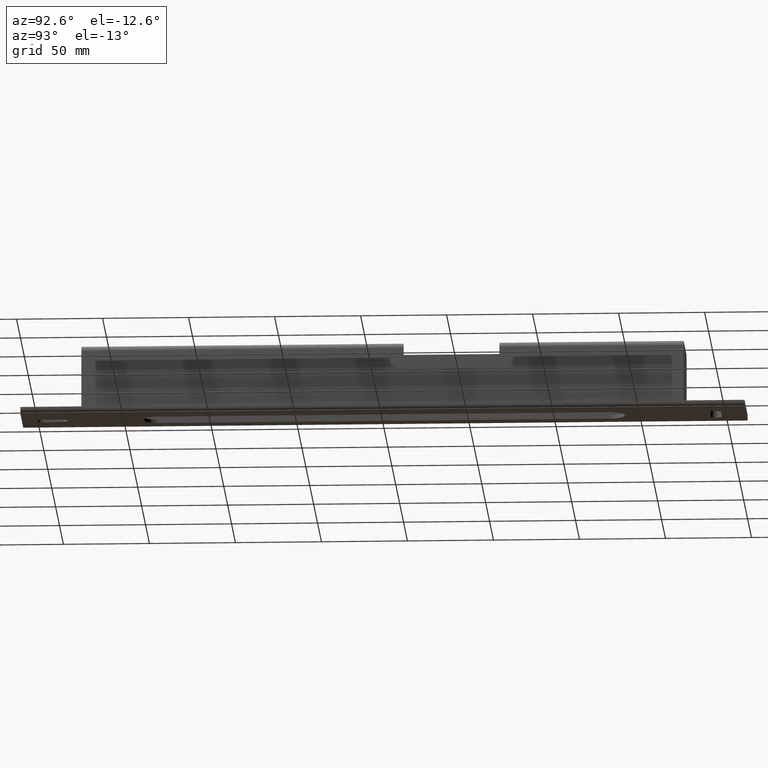
[diagram: clean part render]
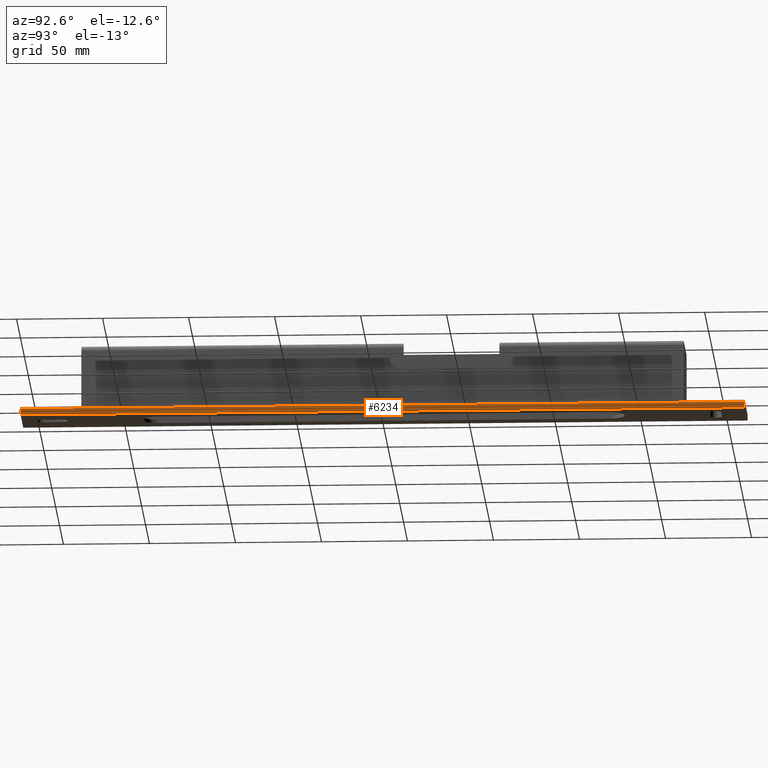
[diagram: same view with one face highlighted and labeled with its STEP entity id]
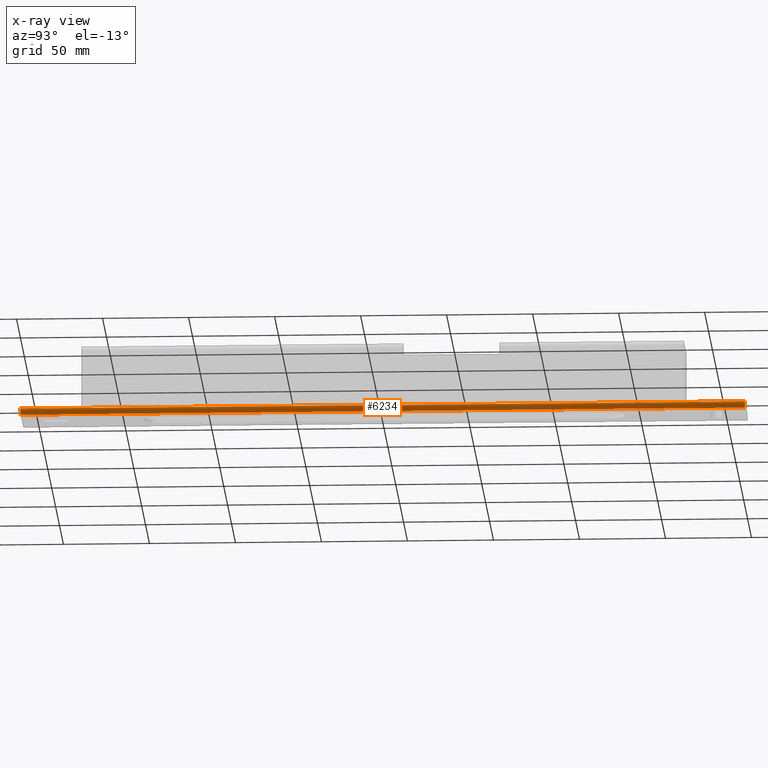
[diagram: x-ray of the same camera — body ghosted, the highlighted face saturated]
A machine part, auxiliary view. The second image highlights one B-rep face of the part: STEP entity #6234.
The next image is the same camera in x-ray: the body ghosted, the highlighted face saturated — about 0% of this face is hidden behind the body in this view.
In plain terms, the highlighted cylindrical surface (edge-blend (fillet) strip) has radius 3 mm, axis along (0, -1, 0).
Its self-contained STEP definition (entity closure, byte-faithful):
#282 = VERTEX_POINT ( 'NONE', #1224 ) ;
#1224 = CARTESIAN_POINT ( 'NONE',  ( 19.99999999999999645, 210.5000000000000000, -16.99999999999999289 ) ) ;
#1819 = DIRECTION ( 'NONE',  ( 0.000000000000000000, 0.000000000000000000, 1.000000000000000000 ) ) ;
#1859 = DIRECTION ( 'NONE',  ( 0.000000000000000000, 1.000000000000000000, 0.000000000000000000 ) ) ;
#1876 = AXIS2_PLACEMENT_3D ( 'NONE', #6945, #7053, #8160 ) ;
#2022 = VECTOR ( 'NONE', #13501, 1000.000000000000000 ) ;
#2537 = LINE ( 'NONE', #12326, #2022 ) ;
#3083 = ORIENTED_EDGE ( 'NONE', *, *, #13759, .T. ) ;
#3515 = CARTESIAN_POINT ( 'NONE',  ( 17.00000000000000000, -210.5000000000000000, -19.99999999999998934 ) ) ;
#3944 = AXIS2_PLACEMENT_3D ( 'NONE', #10745, #1859, #1819 ) ;
#4124 = DIRECTION ( 'NONE',  ( 0.000000000000000000, -1.000000000000000000, 0.000000000000000000 ) ) ;
#4141 = CARTESIAN_POINT ( 'NONE',  ( 17.00000000000000000, 210.5000000000000000, -19.99999999999998934 ) ) ;
#4216 = ORIENTED_EDGE ( 'NONE', *, *, #13552, .F. ) ;
#4913 = CIRCLE ( 'NONE', #3944, 2.999999999999997335 ) ;
#5029 = FACE_OUTER_BOUND ( 'NONE', #10085, .T. ) ;
#5112 = CARTESIAN_POINT ( 'NONE',  ( 17.00000000000000000, 175.0000000000000000, -19.99999999999999289 ) ) ;
#5903 = VERTEX_POINT ( 'NONE', #11521 ) ;
#6234 = ADVANCED_FACE ( 'NONE', ( #5029 ), #8168, .T. ) ;
#6325 = DIRECTION ( 'NONE',  ( 0.000000000000000000, 0.000000000000000000, -1.000000000000000000 ) ) ;
#6945 = CARTESIAN_POINT ( 'NONE',  ( 17.00000000000000000, -210.5000000000000000, -16.99999999999999289 ) ) ;
#7053 = DIRECTION ( 'NONE',  ( -0.000000000000000000, 1.000000000000000000, -0.000000000000000000 ) ) ;
#7388 = EDGE_CURVE ( 'NONE', #5903, #282, #2537, .T. ) ;
#7714 = VERTEX_POINT ( 'NONE', #4141 ) ;
#8040 = CIRCLE ( 'NONE', #1876, 2.999999999999997335 ) ;
#8050 = ORIENTED_EDGE ( 'NONE', *, *, #7388, .F. ) ;
#8160 = DIRECTION ( 'NONE',  ( 0.000000000000000000, 0.000000000000000000, 1.000000000000000000 ) ) ;
#8168 = CYLINDRICAL_SURFACE ( 'NONE', #14245, 2.999999999999999112 ) ;
#8425 = VECTOR ( 'NONE', #4124, 1000.000000000000000 ) ;
#10085 = EDGE_LOOP ( 'NONE', ( #4216, #13792, #8050, #3083 ) ) ;
#10594 = DIRECTION ( 'NONE',  ( 0.000000000000000000, -1.000000000000000000, 0.000000000000000000 ) ) ;
#10745 = CARTESIAN_POINT ( 'NONE',  ( 17.00000000000000000, 210.5000000000000000, -16.99999999999999289 ) ) ;
#11521 = CARTESIAN_POINT ( 'NONE',  ( 19.99999999999999645, -210.5000000000000000, -16.99999999999999289 ) ) ;
#12326 = CARTESIAN_POINT ( 'NONE',  ( 19.99999999999999645, 175.0000000000000000, -16.99999999999999289 ) ) ;
#12441 = VERTEX_POINT ( 'NONE', #3515 ) ;
#12929 = LINE ( 'NONE', #5112, #8425 ) ;
#13435 = EDGE_CURVE ( 'NONE', #282, #7714, #4913, .T. ) ;
#13501 = DIRECTION ( 'NONE',  ( -0.000000000000000000, 1.000000000000000000, -0.000000000000000000 ) ) ;
#13552 = EDGE_CURVE ( 'NONE', #7714, #12441, #12929, .T. ) ;
#13759 = EDGE_CURVE ( 'NONE', #5903, #12441, #8040, .T. ) ;
#13792 = ORIENTED_EDGE ( 'NONE', *, *, #13435, .F. ) ;
#14009 = CARTESIAN_POINT ( 'NONE',  ( 17.00000000000000000, 175.0000000000000000, -16.99999999999999289 ) ) ;
#14245 = AXIS2_PLACEMENT_3D ( 'NONE', #14009, #10594, #6325 ) ;